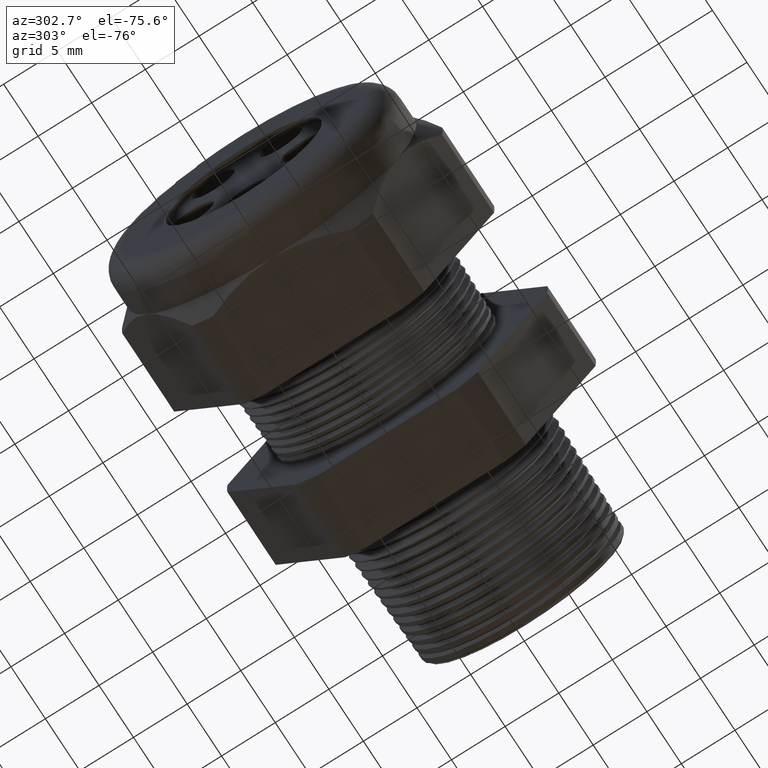
[diagram: clean part render]
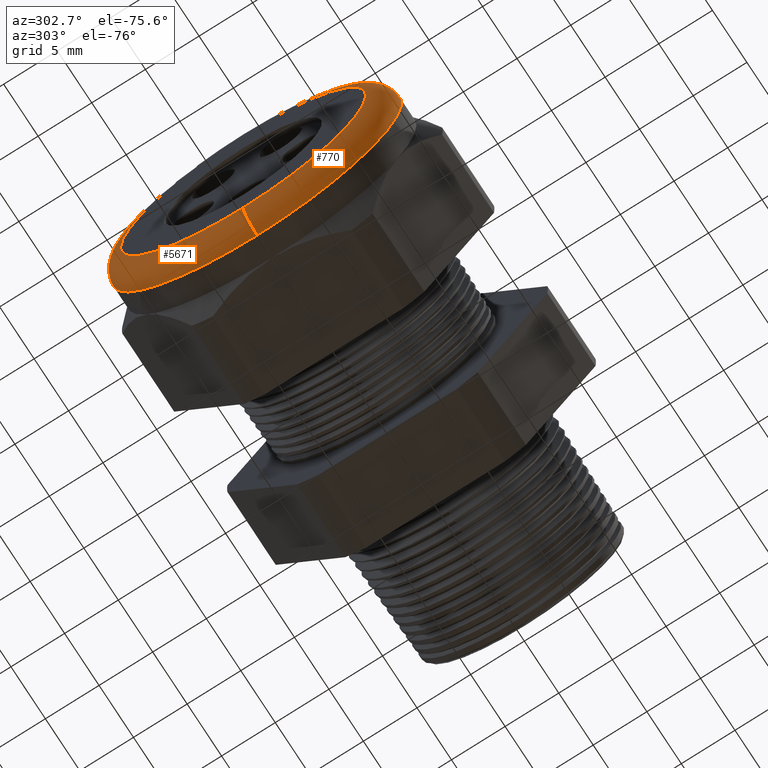
[diagram: same view with one multi-face feature highlighted, each face labeled with its STEP entity id]
A machine part, auxiliary view. The highlighted faces form ONE feature: a constant-radius fillet chain: 2 tangent blend faces with common blend radius 2.032 mm. The faces share edges in the B-rep.
Their STEP definitions:
[1] entity #5671 (Torus):
#17 = ORIENTED_EDGE ( 'NONE', *, *, #19, .F. ) ;
#19 = EDGE_CURVE ( 'NONE', #331, #321, #1215, .T. ) ;
#20 = EDGE_LOOP ( 'NONE', ( #17, #318, #324, #325 ) ) ;
#60 = EDGE_CURVE ( 'NONE', #321, #322, #1332, .T. ) ;
#318 = ORIENTED_EDGE ( 'NONE', *, *, #327, .T. ) ;
#321 = VERTEX_POINT ( 'NONE', #1804 ) ;
#322 = VERTEX_POINT ( 'NONE', #1803 ) ;
#323 = EDGE_CURVE ( 'NONE', #322, #328, #1801, .T. ) ;
#324 = ORIENTED_EDGE ( 'NONE', *, *, #323, .F. ) ;
#325 = ORIENTED_EDGE ( 'NONE', *, *, #60, .F. ) ;
#327 = EDGE_CURVE ( 'NONE', #331, #328, #1796, .T. ) ;
#328 = VERTEX_POINT ( 'NONE', #1792 ) ;
#331 = VERTEX_POINT ( 'NONE', #1786 ) ;
#1211 = DIRECTION ( 'NONE',  ( 0.0000000000000000000, 0.0000000000000000000, 1.000000000000000000 ) ) ;
#1212 = DIRECTION ( 'NONE',  ( 1.000000000000000000, 0.0000000000000000000, 0.0000000000000000000 ) ) ;
#1213 = CARTESIAN_POINT ( 'NONE',  ( -1.330000000000000100, 0.0000000000000000000, 0.0000000000000000000 ) ) ;
#1214 = AXIS2_PLACEMENT_3D ( 'NONE', #1213, #1212, #1211 ) ;
#1215 = CIRCLE ( 'NONE', #1214, 0.5299999999999999200 ) ;
#1328 = DIRECTION ( 'NONE',  ( 0.0000000000000000000, 0.0000000000000000000, -1.000000000000000000 ) ) ;
#1329 = DIRECTION ( 'NONE',  ( 0.0000000000000000000, -1.000000000000000000, 0.0000000000000000000 ) ) ;
#1330 = CARTESIAN_POINT ( 'NONE',  ( -1.330000000000000100, 0.0000000000000000000, 0.4499999999999999600 ) ) ;
#1331 = AXIS2_PLACEMENT_3D ( 'NONE', #1330, #1329, #1328 ) ;
#1332 = CIRCLE ( 'NONE', #1331, 0.07999999999999996000 ) ;
#1786 = CARTESIAN_POINT ( 'NONE',  ( -1.330000000000000100, 0.0000000000000000000, -0.5299999999999999200 ) ) ;
#1792 = CARTESIAN_POINT ( 'NONE',  ( -1.409999999999999900, 6.000769315822029800E-017, -0.4499999999999999600 ) ) ;
#1793 = DIRECTION ( 'NONE',  ( 0.0000000000000000000, -1.224646799147353900E-016, 1.000000000000000000 ) ) ;
#1794 = DIRECTION ( 'NONE',  ( 0.0000000000000000000, 1.000000000000000000, 1.224646799147353200E-016 ) ) ;
#1795 = AXIS2_PLACEMENT_3D ( 'NONE', #1802, #1794, #1793 ) ;
#1796 = CIRCLE ( 'NONE', #1795, 0.07999999999999996000 ) ;
#1797 = DIRECTION ( 'NONE',  ( 0.0000000000000000000, 0.0000000000000000000, 1.000000000000000000 ) ) ;
#1798 = DIRECTION ( 'NONE',  ( -1.000000000000000000, 0.0000000000000000000, 0.0000000000000000000 ) ) ;
#1799 = CARTESIAN_POINT ( 'NONE',  ( -1.409999999999999900, 0.0000000000000000000, 0.0000000000000000000 ) ) ;
#1800 = AXIS2_PLACEMENT_3D ( 'NONE', #1799, #1798, #1797 ) ;
#1801 = CIRCLE ( 'NONE', #1800, 0.4499999999999999600 ) ;
#1802 = CARTESIAN_POINT ( 'NONE',  ( -1.330000000000000100, 5.510910596163088900E-017, -0.4499999999999999600 ) ) ;
#1803 = CARTESIAN_POINT ( 'NONE',  ( -1.409999999999999900, 0.0000000000000000000, 0.4499999999999999600 ) ) ;
#1804 = CARTESIAN_POINT ( 'NONE',  ( -1.330000000000000100, 6.490628035480971200E-017, 0.5299999999999999200 ) ) ;
#4758 = DIRECTION ( 'NONE',  ( 0.0000000000000000000, 0.0000000000000000000, 1.000000000000000000 ) ) ;
#4759 = DIRECTION ( 'NONE',  ( -1.000000000000000000, 0.0000000000000000000, 0.0000000000000000000 ) ) ;
#4760 = AXIS2_PLACEMENT_3D ( 'NONE', #4763, #4759, #4758 ) ;
#4761 = TOROIDAL_SURFACE ( 'NONE', #4760, 0.4499999999999999600, 0.08000000000000000200 ) ;
#4763 = CARTESIAN_POINT ( 'NONE',  ( -1.330000000000000100, 0.0000000000000000000, 0.0000000000000000000 ) ) ;
#4764 = FACE_OUTER_BOUND ( 'NONE', #20, .T. ) ;
#5671 = ADVANCED_FACE ( 'NONE', ( #4764 ), #4761, .T. ) ;
[2] entity #770 (Torus):
#60 = EDGE_CURVE ( 'NONE', #321, #322, #1332, .T. ) ;
#321 = VERTEX_POINT ( 'NONE', #1804 ) ;
#322 = VERTEX_POINT ( 'NONE', #1803 ) ;
#327 = EDGE_CURVE ( 'NONE', #331, #328, #1796, .T. ) ;
#328 = VERTEX_POINT ( 'NONE', #1792 ) ;
#331 = VERTEX_POINT ( 'NONE', #1786 ) ;
#554 = EDGE_CURVE ( 'NONE', #328, #322, #2257, .T. ) ;
#566 = EDGE_CURVE ( 'NONE', #321, #331, #2301, .T. ) ;
#770 = ADVANCED_FACE ( 'NONE', ( #2569 ), #2568, .T. ) ;
#771 = EDGE_LOOP ( 'NONE', ( #772, #773, #774, #775 ) ) ;
#772 = ORIENTED_EDGE ( 'NONE', *, *, #327, .F. ) ;
#773 = ORIENTED_EDGE ( 'NONE', *, *, #566, .F. ) ;
#774 = ORIENTED_EDGE ( 'NONE', *, *, #60, .T. ) ;
#775 = ORIENTED_EDGE ( 'NONE', *, *, #554, .F. ) ;
#1328 = DIRECTION ( 'NONE',  ( 0.0000000000000000000, 0.0000000000000000000, -1.000000000000000000 ) ) ;
#1329 = DIRECTION ( 'NONE',  ( 0.0000000000000000000, -1.000000000000000000, 0.0000000000000000000 ) ) ;
#1330 = CARTESIAN_POINT ( 'NONE',  ( -1.330000000000000100, 0.0000000000000000000, 0.4499999999999999600 ) ) ;
#1331 = AXIS2_PLACEMENT_3D ( 'NONE', #1330, #1329, #1328 ) ;
#1332 = CIRCLE ( 'NONE', #1331, 0.07999999999999996000 ) ;
#1786 = CARTESIAN_POINT ( 'NONE',  ( -1.330000000000000100, 0.0000000000000000000, -0.5299999999999999200 ) ) ;
#1792 = CARTESIAN_POINT ( 'NONE',  ( -1.409999999999999900, 6.000769315822029800E-017, -0.4499999999999999600 ) ) ;
#1793 = DIRECTION ( 'NONE',  ( 0.0000000000000000000, -1.224646799147353900E-016, 1.000000000000000000 ) ) ;
#1794 = DIRECTION ( 'NONE',  ( 0.0000000000000000000, 1.000000000000000000, 1.224646799147353200E-016 ) ) ;
#1795 = AXIS2_PLACEMENT_3D ( 'NONE', #1802, #1794, #1793 ) ;
#1796 = CIRCLE ( 'NONE', #1795, 0.07999999999999996000 ) ;
#1802 = CARTESIAN_POINT ( 'NONE',  ( -1.330000000000000100, 5.510910596163088900E-017, -0.4499999999999999600 ) ) ;
#1803 = CARTESIAN_POINT ( 'NONE',  ( -1.409999999999999900, 0.0000000000000000000, 0.4499999999999999600 ) ) ;
#1804 = CARTESIAN_POINT ( 'NONE',  ( -1.330000000000000100, 6.490628035480971200E-017, 0.5299999999999999200 ) ) ;
#2253 = DIRECTION ( 'NONE',  ( 0.0000000000000000000, 0.0000000000000000000, 1.000000000000000000 ) ) ;
#2254 = DIRECTION ( 'NONE',  ( -1.000000000000000000, 0.0000000000000000000, 0.0000000000000000000 ) ) ;
#2255 = CARTESIAN_POINT ( 'NONE',  ( -1.409999999999999900, 0.0000000000000000000, 0.0000000000000000000 ) ) ;
#2256 = AXIS2_PLACEMENT_3D ( 'NONE', #2255, #2254, #2253 ) ;
#2257 = CIRCLE ( 'NONE', #2256, 0.4499999999999999600 ) ;
#2297 = DIRECTION ( 'NONE',  ( 0.0000000000000000000, 0.0000000000000000000, 1.000000000000000000 ) ) ;
#2298 = DIRECTION ( 'NONE',  ( 1.000000000000000000, 0.0000000000000000000, 0.0000000000000000000 ) ) ;
#2299 = CARTESIAN_POINT ( 'NONE',  ( -1.330000000000000100, 0.0000000000000000000, 0.0000000000000000000 ) ) ;
#2300 = AXIS2_PLACEMENT_3D ( 'NONE', #2299, #2298, #2297 ) ;
#2301 = CIRCLE ( 'NONE', #2300, 0.5299999999999999200 ) ;
#2565 = DIRECTION ( 'NONE',  ( 0.0000000000000000000, 0.0000000000000000000, 1.000000000000000000 ) ) ;
#2566 = DIRECTION ( 'NONE',  ( -1.000000000000000000, 0.0000000000000000000, 0.0000000000000000000 ) ) ;
#2567 = AXIS2_PLACEMENT_3D ( 'NONE', #2573, #2566, #2565 ) ;
#2568 = TOROIDAL_SURFACE ( 'NONE', #2567, 0.4499999999999999600, 0.08000000000000000200 ) ;
#2569 = FACE_OUTER_BOUND ( 'NONE', #771, .T. ) ;
#2573 = CARTESIAN_POINT ( 'NONE',  ( -1.330000000000000100, 0.0000000000000000000, 0.0000000000000000000 ) ) ;